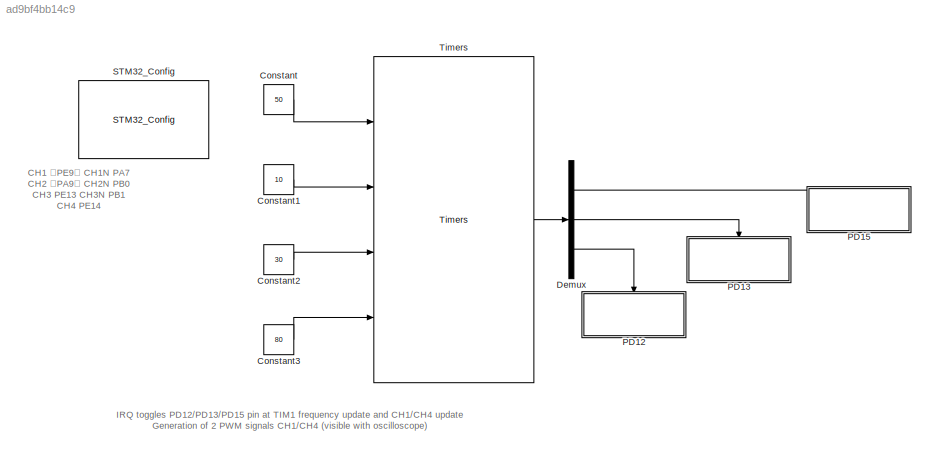
MODEL slx_ad9bf4bb14c9
KIND model
CONFIG AbsTol = auto
CONFIG EnableMultiTasking = on
CONFIG FixedStep = auto
CONFIG MaxStep = auto
CONFIG MinStep = auto
CONFIG RelTol = 1e-3
CONFIG SampleTimeConstraint = Unconstrained
CONFIG Solver = FixedStepDiscrete
CONFIG SolverName = FixedStepDiscrete
CONFIG StartTime = 0.0
CONFIG StopTime = 10.0
BLOCK [Constant] Constant
  Value = 50
BLOCK [Constant] Constant1
  Value = 10
BLOCK [Constant] Constant2
  Value = 30
BLOCK [Constant] Constant3
  Value = 80
BLOCK [Demux] Demux
  DisplayOption = bar
  Outputs = 3
  Ports = [1, 3]
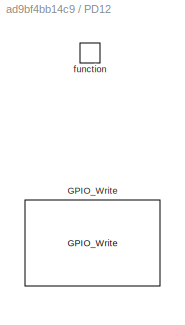
BLOCK [SubSystem] PD12
  Ports = [0, 0, 0, 1]
  RequestExecContextInheritance = off
  TreatAsAtomicUnit = on
BLOCK [Reference] PD12/GPIO_Write  REF=GPIO_Lib/GPIO_Write
  Ports = []
  SourceBlock = GPIO_Lib/GPIO_Write
  SourceProductName = Target Support Package - STM32 Adapter
  SourceType = GPIO_Write
BLOCK [TriggerPort] PD12/function
  Ports = []
  StatesWhenEnabling = held
  TriggerType = function-call
  VariantControl = Variant
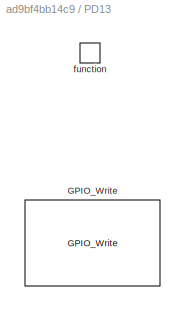
BLOCK [SubSystem] PD13
  Ports = [0, 0, 0, 1]
  RequestExecContextInheritance = off
  TreatAsAtomicUnit = on
BLOCK [Reference] PD13/GPIO_Write  REF=GPIO_Lib/GPIO_Write
  Ports = []
  SourceBlock = GPIO_Lib/GPIO_Write
  SourceProductName = Target Support Package - STM32 Adapter
  SourceType = GPIO_Write
BLOCK [TriggerPort] PD13/function
  Ports = []
  StatesWhenEnabling = held
  TriggerType = function-call
  VariantControl = Variant
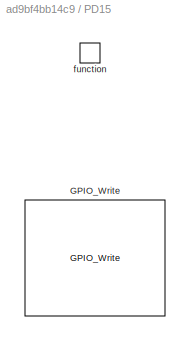
BLOCK [SubSystem] PD15
  Ports = [0, 0, 0, 1]
  RequestExecContextInheritance = off
  TreatAsAtomicUnit = on
BLOCK [Reference] PD15/GPIO_Write  REF=GPIO_Lib/GPIO_Write
  Ports = []
  SourceBlock = GPIO_Lib/GPIO_Write
  SourceProductName = Target Support Package - STM32 Adapter
  SourceType = GPIO_Write
BLOCK [TriggerPort] PD15/function
  Ports = []
  StatesWhenEnabling = held
  TriggerType = function-call
  VariantControl = Variant
BLOCK [Reference] STM32_Config  REF=STM32_Config_Lib/STM32_Config
  Ports = []
  Priority = 0
  SourceBlock = STM32_Config_Lib/STM32_Config
  SourceProductName = Target Support Package - STM32 Adapter
  SourceType = STM32_Config
BLOCK [Reference] Timers  REF=TIMERS_Lib/Timers
  Ports = [4, 1]
  SourceBlock = TIMERS_Lib/Timers
  SourceProductName = Target Support Package - STM32 Adapter
  SourceType = Timers
ANNOTATION (root): CH1 （PE9） CH1N PA7 CH2 （PA9） CH2N PB0 CH3 PE13 CH3N PB1 CH4 PE14
ANNOTATION (root): IRQ toggles PD12/PD13/PD15 pin at TIM1 frequency update and CH1/CH4 update Generation of 2 PWM signals CH1/CH4 (visible with oscilloscope)
LINE Constant1:1 -> Timers:2
LINE Constant2:1 -> Timers:3
LINE Constant3:1 -> Timers:4
LINE Constant:1 -> Timers:1
LINE Demux:1 -> PD15:trigger
LINE Demux:2 -> PD13:trigger
LINE Demux:3 -> PD12:trigger
LINE Timers:1 -> Demux:1
